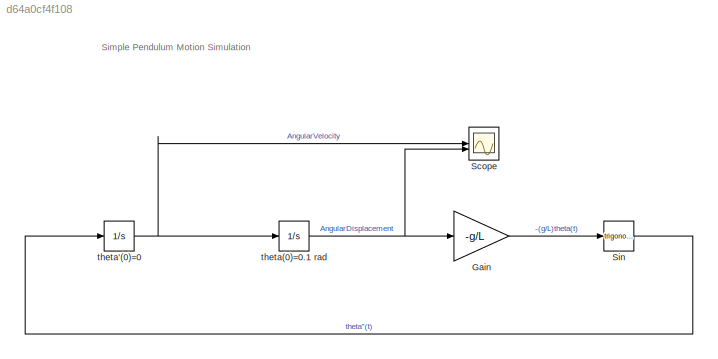
MODEL slx_d64a0cf4f108
KIND model
CONFIG AbsTol = auto
CONFIG EnableMultiTasking = off
CONFIG FixedStep = auto
CONFIG MaxStep = auto
CONFIG MinStep = auto
CONFIG RelTol = 1e-3
CONFIG SampleTimeConstraint = Unconstrained
CONFIG SolverName = VariableStepAuto
CONFIG StartTime = 0.0
CONFIG StopTime = 10
WORKSPACE source: mxarray member
WORKSPACE L = 1
WORKSPACE g = 9.81
BLOCK [Gain] Gain
  Gain = -g/L
BLOCK [Scope] Scope
  Floating = off
  NumInputPorts = 2
  ScopeSpecificationString = Simulink.scopes.TimeScopeBlockCfg('CurrentConfiguration', extmgr.ConfigurationSet(extmgr.Configuration('Core','General UI',true),extmgr.Configuration('Core','Source UI',true),extmgr.Configuration('Sources','WiredSimulink',true),extmgr.Configuration('Visuals','Time Domain',true,'SerializedDisplays',{struct('MinYLimReal','-0.37559','MaxYLimReal','0.3757','YLabelReal','','MinYLimMag','0.00000','MaxYL...<+1369ch>
BLOCK [Trigonometry] Sin
BLOCK [Integrator] theta'(0)=0
BLOCK [Integrator] theta(0)=0.1 rad
  InitialCondition = 0.1
ANNOTATION (root): Simple Pendulum Motion Simulation
LINE Gain:1 -> Sin:1
LINE Sin:1 -> theta'(0)=0:1
NET theta'(0)=0:1 -> Scope:1, theta(0)=0.1 rad:1
NET theta(0)=0.1 rad:1 -> Gain:1, Scope:2
note: NET lines group one-source signal fan-out (src -> all destinations, sorted); 1:1 wires keep LINE
